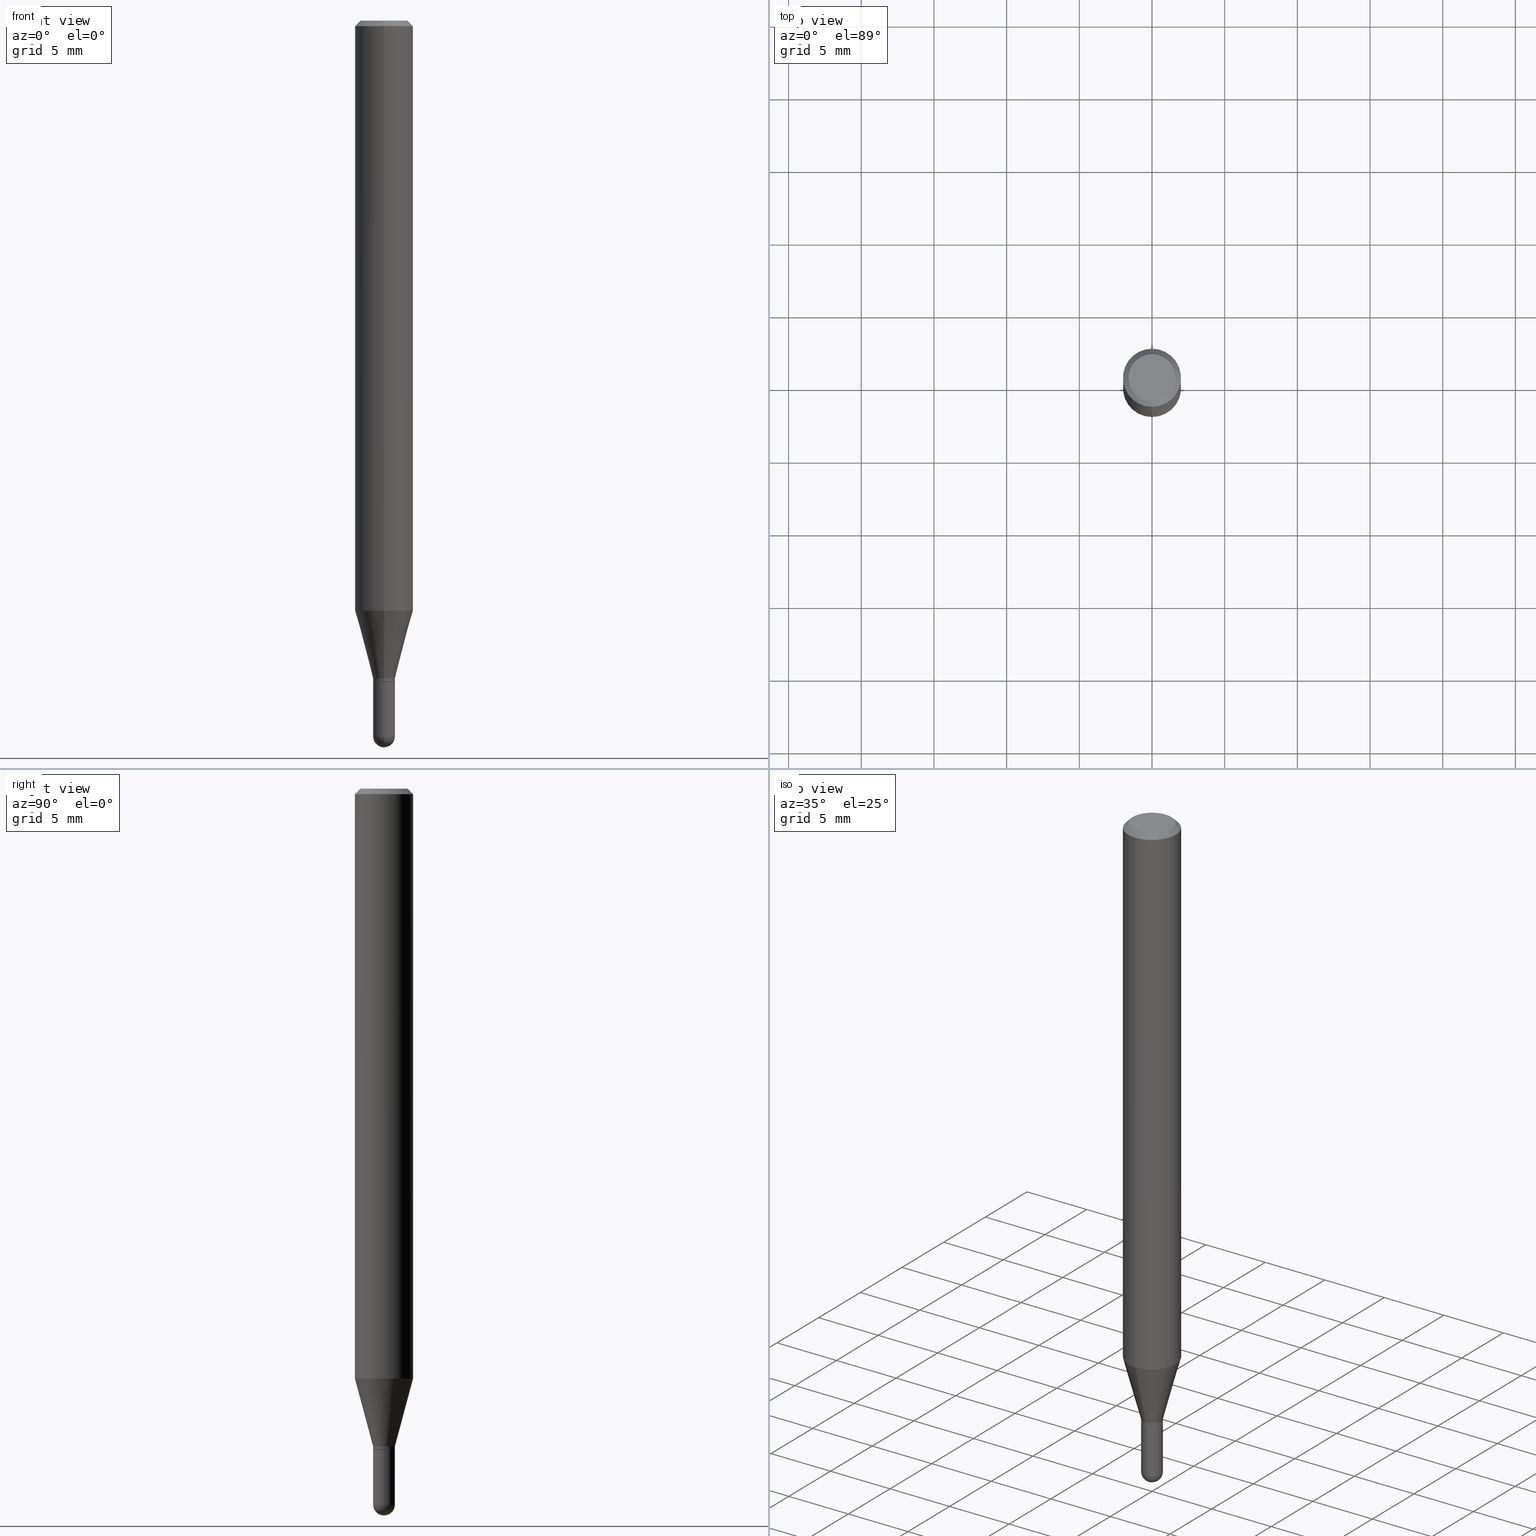
[diagram: canonical four-view strip — front | top / right | iso, engineering-drawing reading convention]
A machine part, canonical four-view strip (front | top / right | iso — engineering-drawing reading convention). The complete STEP part file that produces these views, byte-faithful:
ISO-10303-21;
HEADER;
FILE_DESCRIPTION (( 'STEP AP203' ),
    '1' );
FILE_NAME ('03008.STEP',
    '2024-03-08T18:00:10',
    ( '' ),
    ( '' ),
    'SwSTEP 2.0',
    'SolidWorks 2023',
    '' );
FILE_SCHEMA (( 'CONFIG_CONTROL_DESIGN' ));
ENDSEC;

DATA;
#1 = CARTESIAN_POINT ( 'NONE',  ( 2.064126647383528571E-16, 0.02904999999999374402, -1.791300000000000336 ) ) ;
#2 = CARTESIAN_POINT ( 'NONE',  ( 4.113903782286286095E-46, -5.873464679094396251E-32, -1.682241431823997072E-17 ) ) ;
#3 = APPROVAL_STATUS ( 'not_yet_approved' ) ;
#4 = APPROVAL_DATE_TIME ( #326, #141 ) ;
#5 = AXIS2_PLACEMENT_3D ( 'NONE', #491, #131, #295 ) ;
#6 = DIRECTION ( 'NONE',  ( -6.982962677686265133E-15, -1.000000000000000000, 0.000000000000000000 ) ) ;
#7 = AXIS2_PLACEMENT_3D ( 'NONE', #148, #51, #311 ) ;
#8 = PERSON_AND_ORGANIZATION_ROLE ( 'classification_officer' ) ;
#9 = EDGE_CURVE ( 'NONE', #355, #499, #20, .T. ) ;
#10 = CARTESIAN_POINT ( 'NONE',  ( 4.741641741752670047E-29, -6.769807741949916508E-15, -1.938949999999999729 ) ) ;
#11 = SECURITY_CLASSIFICATION_LEVEL ( 'unclassified' ) ;
#12 = EDGE_CURVE ( 'NONE', #30, #59, #300, .T. ) ;
#13 = CARTESIAN_POINT ( 'NONE',  ( 4.356639569979275081E-29, -6.220021174048346043E-15, -1.781500000000000083 ) ) ;
#14 = SPHERICAL_SURFACE ( 'NONE', #174, 0.02954999999999998253 ) ;
#15 = VECTOR ( 'NONE', #448, 39.37007874015748143 ) ;
#16 = CARTESIAN_POINT ( 'NONE',  ( 5.499083108677937401E-16, 0.07874999999999994504, -0.01500000000000029261 ) ) ;
#17 = VECTOR ( 'NONE', #477, 39.37007874015748143 ) ;
#18 = DIRECTION ( 'NONE',  ( 1.000000000000000000, -6.982962677686261977E-15, 0.000000000000000000 ) ) ;
#19 = EDGE_LOOP ( 'NONE', ( #495, #97 ) ) ;
#20 = LINE ( 'NONE', #90, #238 ) ;
#21 = FACE_OUTER_BOUND ( 'NONE', #254, .T. ) ;
#22 = CALENDAR_DATE ( 2024, 8, 3 ) ;
#23 = EDGE_CURVE ( 'NONE', #334, #30, #128, .T. ) ;
#24 = CARTESIAN_POINT ( 'NONE',  ( 3.668234271663721068E-31, -5.237177525159993378E-17, -0.01500000000000001679 ) ) ;
#25 = CARTESIAN_POINT ( 'NONE',  ( -0.02954999999999999988, 2.099653784171096041E-16, -1.453545319170324550E-30 ) ) ;
#26 = ORIENTED_EDGE ( 'NONE', *, *, #139, .F. ) ;
#27 = CYLINDRICAL_SURFACE ( 'NONE', #356, 0.02954999999999999988 ) ;
#28 = ORIENTED_EDGE ( 'NONE', *, *, #107, .F. ) ;
#29 = LINE ( 'NONE', #308, #481 ) ;
#30 = VERTEX_POINT ( 'NONE', #442 ) ;
#31 = CARTESIAN_POINT ( 'NONE',  ( 2.099653784171090371E-16, 0.02954999999999992355, -1.031723972456514811E-16 ) ) ;
#32 = EDGE_LOOP ( 'NONE', ( #266, #149, #294, #62 ) ) ;
#33 = ORIENTED_EDGE ( 'NONE', *, *, #440, .T. ) ;
#34 = PERSON_AND_ORGANIZATION ( #118, #357 ) ;
#35 = EDGE_CURVE ( 'NONE', #384, #263, #80, .T. ) ;
#36 = ORIENTED_EDGE ( 'NONE', *, *, #415, .F. ) ;
#37 =( LENGTH_UNIT ( ) NAMED_UNIT ( * ) SI_UNIT ( $, .METRE. ) );
#38 = CIRCLE ( 'NONE', #503, 0.02955000000000019764 ) ;
#39 = CARTESIAN_POINT ( 'NONE',  ( 4.356639569979275081E-29, -6.220021174048346043E-15, -1.781500000000000083 ) ) ;
#40 = DIRECTION ( 'NONE',  ( -2.445489514442478225E-29, 3.491451683439991329E-15, 1.000000000000000000 ) ) ;
#41 = CARTESIAN_POINT ( 'NONE',  ( -2.028550657867422299E-16, -0.02905000000000625138, -1.791300000000000336 ) ) ;
#42 = APPROVAL_DATE_TIME ( #45, #168 ) ;
#43 = DIRECTION ( 'NONE',  ( -2.445468806185136597E-29, 3.491481338843145583E-15, 1.000000000000000000 ) ) ;
#44 = ADVANCED_FACE ( 'NONE', ( #451 ), #452, .T. ) ;
#45 = DATE_AND_TIME ( #127, #55 ) ;
#46 = CARTESIAN_POINT ( 'NONE',  ( 4.380605367220811982E-29, -6.254237400546057519E-15, -1.791300000000000336 ) ) ;
#47 = CIRCLE ( 'NONE', #138, 0.02904999999999999943 ) ;
#48 = APPROVAL_STATUS ( 'not_yet_approved' ) ;
#49 = PLANE ( 'NONE',  #399 ) ;
#50 = EDGE_CURVE ( 'NONE', #416, #59, #373, .T. ) ;
#51 = DIRECTION ( 'NONE',  ( -2.445468806185136597E-29, 3.491481338843145583E-15, 1.000000000000000000 ) ) ;
#52 = DIRECTION ( 'NONE',  ( -6.982962677686264344E-15, -1.000000000000000000, 3.496114991891765576E-15 ) ) ;
#53 = ORIENTED_EDGE ( 'NONE', *, *, #512, .T. ) ;
#54 = APPLICATION_CONTEXT ( 'configuration controlled 3d designs of mechanical parts and assemblies' ) ;
#55 = LOCAL_TIME ( 13, 0, 10.00000000000000000, #246 ) ;
#56 = FACE_OUTER_BOUND ( 'NONE', #140, .T. ) ;
#57 = ORIENTED_EDGE ( 'NONE', *, *, #83, .F. ) ;
#58 = CARTESIAN_POINT ( 'NONE',  ( 0.000000000000000000, 0.000000000000000000, 0.000000000000000000 ) ) ;
#59 = VERTEX_POINT ( 'NONE', #417 ) ;
#60 = CARTESIAN_POINT ( 'NONE',  ( -5.499083108677930499E-16, -0.07875000000000004219, -0.01499999999999974097 ) ) ;
#61 = PRODUCT_DEFINITION ( 'UNKNOWN', '', #218, #353 ) ;
#62 = ORIENTED_EDGE ( 'NONE', *, *, #269, .T. ) ;
#63 = EDGE_CURVE ( 'NONE', #312, #105, #154, .T. ) ;
#64 = FACE_OUTER_BOUND ( 'NONE', #115, .T. ) ;
#65 = ORIENTED_EDGE ( 'NONE', *, *, #512, .F. ) ;
#66 = ADVANCED_FACE ( 'NONE', ( #21 ), #27, .T. ) ;
#67 = AXIS2_PLACEMENT_3D ( 'NONE', #242, #204, #403 ) ;
#68 = DIRECTION ( 'NONE',  ( 1.000000000000000000, 0.000000000000000000, 0.000000000000000000 ) ) ;
#69 = CIRCLE ( 'NONE', #365, 0.02954999999999998253 ) ;
#70 = ORIENTED_EDGE ( 'NONE', *, *, #147, .F. ) ;
#71 = ORIENTED_EDGE ( 'NONE', *, *, #160, .T. ) ;
#72 = CARTESIAN_POINT ( 'NONE',  ( -2.063465471255869873E-16, -0.02955000000000641489, -1.781500000000000083 ) ) ;
#73 = CARTESIAN_POINT ( 'NONE',  ( 4.379382622463590409E-29, -6.252491674704336958E-15, -1.790800000000000169 ) ) ;
#74 = DIRECTION ( 'NONE',  ( -6.982962677686264344E-15, -1.000000000000000000, 3.491451683439990934E-15 ) ) ;
#75 = VECTOR ( 'NONE', #207, 39.37007874015748143 ) ;
#76 = CIRCLE ( 'NONE', #492, 0.06374999999999998723 ) ;
#77 = DIRECTION ( 'NONE',  ( 1.000000000000000000, -6.982962677686261977E-15, 0.000000000000000000 ) ) ;
#78 = DIRECTION ( 'NONE',  ( -6.982962677686265133E-15, -1.000000000000000000, 0.000000000000000000 ) ) ;
#79 = CARTESIAN_POINT ( 'NONE',  ( -2.099653784170621245E-16, -0.02955000000000676530, -1.938949999999999729 ) ) ;
#80 = LINE ( 'NONE', #307, #317 ) ;
#81 = CALENDAR_DATE ( 2024, 8, 3 ) ;
#82 = CARTESIAN_POINT ( 'NONE',  ( 4.451638707024993845E-16, 0.06374999999999998723, -2.309912519784194220E-16 ) ) ;
#83 = EDGE_CURVE ( 'NONE', #312, #396, #184, .T. ) ;
#84 = PERSON_AND_ORGANIZATION ( #118, #357 ) ;
#85 = DIRECTION ( 'NONE',  ( -6.982962677686265922E-15, -1.000000000000000000, 3.491451683439991329E-15 ) ) ;
#86 = AXIS2_PLACEMENT_3D ( 'NONE', #283, #429, #68 ) ;
#87 = LOCAL_TIME ( 13, 0, 10.00000000000000000, #122 ) ;
#88 = CYLINDRICAL_SURFACE ( 'NONE', #302, 0.07875000000000000056 ) ;
#89 = FACE_OUTER_BOUND ( 'NONE', #455, .T. ) ;
#90 = CARTESIAN_POINT ( 'NONE',  ( 0.02954999999999999988, -2.063465471256291914E-16, 1.440910237247699070E-30 ) ) ;
#91 = DIRECTION ( 'NONE',  ( -2.445468806185136597E-29, 3.491481338843145583E-15, 1.000000000000000000 ) ) ;
#92 = ORIENTED_EDGE ( 'NONE', *, *, #349, .F. ) ;
#93 = AXIS2_PLACEMENT_3D ( 'NONE', #73, #397, #323 ) ;
#94 = DIRECTION ( 'NONE',  ( -2.445468806185136597E-29, 3.491481338843145583E-15, 1.000000000000000000 ) ) ;
#95 = CC_DESIGN_APPROVAL ( #141, ( #121 ) ) ;
#96 = DIRECTION ( 'NONE',  ( 1.000000000000000000, -6.982962677686261977E-15, 0.000000000000000000 ) ) ;
#97 = ORIENTED_EDGE ( 'NONE', *, *, #388, .F. ) ;
#98 = EDGE_CURVE ( 'NONE', #279, #105, #274, .T. ) ;
#99 = ORIENTED_EDGE ( 'NONE', *, *, #460, .T. ) ;
#100 = AXIS2_PLACEMENT_3D ( 'NONE', #244, #43, #213 ) ;
#101 = CC_DESIGN_PERSON_AND_ORGANIZATION_ASSIGNMENT ( #34, #117, ( #259 ) ) ;
#102 = AXIS2_PLACEMENT_3D ( 'NONE', #462, #333, #214 ) ;
#103 = CYLINDRICAL_SURFACE ( 'NONE', #165, 0.07875000000000000056 ) ;
#104 = ADVANCED_FACE ( 'NONE', ( #441 ), #137, .T. ) ;
#105 = VERTEX_POINT ( 'NONE', #79 ) ;
#106 = CARTESIAN_POINT ( 'NONE',  ( 4.812641836783178306E-29, -6.874790431158471975E-15, -1.968500000000000139 ) ) ;
#107 = EDGE_CURVE ( 'NONE', #309, #508, #331, .T. ) ;
#108 = ORIENTED_EDGE ( 'NONE', *, *, #9, .F. ) ;
#109 = DIRECTION ( 'NONE',  ( -2.445489514442478225E-29, 3.491451683439991329E-15, 1.000000000000000000 ) ) ;
#110 = ORIENTED_EDGE ( 'NONE', *, *, #232, .T. ) ;
#111 = ADVANCED_FACE ( 'NONE', ( #480 ), #116, .T. ) ;
#112 = MECHANICAL_CONTEXT ( 'NONE', #54, 'mechanical' ) ;
#113 = VERTEX_POINT ( 'NONE', #41 ) ;
#114 = DIRECTION ( 'NONE',  ( -6.982962677686265922E-15, -1.000000000000000000, 3.491451683439990934E-15 ) ) ;
#115 = EDGE_LOOP ( 'NONE', ( #183, #180, #194, #434 ) ) ;
#116 = SPHERICAL_SURFACE ( 'NONE', #412, 0.02954999999999998253 ) ;
#117 = PERSON_AND_ORGANIZATION_ROLE ( 'design_owner' ) ;
#118 = PERSON ( 'UNSPECIFIED', 'UNSPECIFIED', 'UNSPECIFIED', ('UNSPECIFIED'), ('UNSPECIFIED'), ('UNSPECIFIED') ) ;
#119 = FACE_OUTER_BOUND ( 'NONE', #423, .T. ) ;
#120 = DIRECTION ( 'NONE',  ( -6.982962677686266711E-15, -1.000000000000000000, 0.000000000000000000 ) ) ;
#121 = SECURITY_CLASSIFICATION ( '', '', #11 ) ;
#122 = COORDINATED_UNIVERSAL_TIME_OFFSET ( 5, 0, .BEHIND. ) ;
#123 = EDGE_CURVE ( 'NONE', #355, #469, #200, .T. ) ;
#124 = CARTESIAN_POINT ( 'NONE',  ( 0.000000000000000000, 0.000000000000000000, 0.000000000000000000 ) ) ;
#125 = APPROVAL_ROLE ( '' ) ;
#126 = DIRECTION ( 'NONE',  ( -2.445468806185136597E-29, 3.491481338843145583E-15, 1.000000000000000000 ) ) ;
#127 = CALENDAR_DATE ( 2024, 8, 3 ) ;
#128 = CIRCLE ( 'NONE', #291, 0.07875000000000000056 ) ;
#129 = CARTESIAN_POINT ( 'NONE',  ( 2.081890215777515068E-16, 0.02904999999999374402, -1.791300000000000336 ) ) ;
#130 = LOCAL_TIME ( 13, 0, 10.00000000000000000, #407 ) ;
#131 = DIRECTION ( 'NONE',  ( -1.000000000000000000, 7.105427357601001070E-15, -4.926315508542082329E-29 ) ) ;
#132 = CYLINDRICAL_SURFACE ( 'NONE', #7, 0.02954999999999999988 ) ;
#133 = LINE ( 'NONE', #187, #202 ) ;
#134 = EDGE_LOOP ( 'NONE', ( #475, #110 ) ) ;
#135 = EDGE_CURVE ( 'NONE', #227, #508, #38, .T. ) ;
#136 = ORIENTED_EDGE ( 'NONE', *, *, #388, .T. ) ;
#137 = CONICAL_SURFACE ( 'NONE', #216, 0.02955000000000019764, 0.2617993877991505736 ) ;
#138 = AXIS2_PLACEMENT_3D ( 'NONE', #395, #109, #120 ) ;
#139 = EDGE_CURVE ( 'NONE', #499, #396, #189, .T. ) ;
#140 = EDGE_LOOP ( 'NONE', ( #501, #472, #156, #305 ) ) ;
#141 = APPROVAL ( #366, 'UNSPECIFIED' ) ;
#142 = EDGE_CURVE ( 'NONE', #320, #461, #361, .T. ) ;
#143 = DIRECTION ( 'NONE',  ( -2.445489514442477945E-29, 3.491451683439991329E-15, 1.000000000000000000 ) ) ;
#144 = ORIENTED_EDGE ( 'NONE', *, *, #431, .F. ) ;
#145 = CIRCLE ( 'NONE', #67, 0.07875000000000000056 ) ;
#146 = AXIS2_PLACEMENT_3D ( 'NONE', #276, #40, #78 ) ;
#147 = EDGE_CURVE ( 'NONE', #309, #461, #324, .T. ) ;
#148 = CARTESIAN_POINT ( 'NONE',  ( 0.000000000000000000, 0.000000000000000000, 0.000000000000000000 ) ) ;
#149 = ORIENTED_EDGE ( 'NONE', *, *, #454, .F. ) ;
#150 = DIRECTION ( 'NONE',  ( -2.445489514442478225E-29, 3.491451683439991329E-15, 1.000000000000000000 ) ) ;
#151 = APPROVAL ( #3, 'UNSPECIFIED' ) ;
#152 = EDGE_LOOP ( 'NONE', ( #71, #229, #177, #92 ) ) ;
#153 = ORIENTED_EDGE ( 'NONE', *, *, #431, .T. ) ;
#154 = CIRCLE ( 'NONE', #230, 0.02954999999999999988 ) ;
#155 = CIRCLE ( 'NONE', #93, 0.02954999999999964946 ) ;
#156 = ORIENTED_EDGE ( 'NONE', *, *, #63, .F. ) ;
#157 = EDGE_CURVE ( 'NONE', #30, #334, #145, .T. ) ;
#158 = LINE ( 'NONE', #243, #17 ) ;
#159 = DIRECTION ( 'NONE',  ( 5.024295867785445738E-15, 0.7071067811861817543, 0.7071067811869132802 ) ) ;
#160 = EDGE_CURVE ( 'NONE', #508, #227, #426, .T. ) ;
#161 = DIRECTION ( 'NONE',  ( -2.445489514442478225E-29, 3.491451683439991329E-15, 1.000000000000000000 ) ) ;
#162 = APPROVAL_ROLE ( '' ) ;
#163 = EDGE_CURVE ( 'NONE', #105, #355, #497, .T. ) ;
#164 = SHAPE_DEFINITION_REPRESENTATION ( #457, #258 ) ;
#165 = AXIS2_PLACEMENT_3D ( 'NONE', #265, #502, #338 ) ;
#166 = DIRECTION ( 'NONE',  ( -2.445489514442478225E-29, 3.491451683439991329E-15, 1.000000000000000000 ) ) ;
#167 = DATE_TIME_ROLE ( 'creation_date' ) ;
#168 = APPROVAL ( #48, 'UNSPECIFIED' ) ;
#169 = DIRECTION ( 'NONE',  ( -6.982962677686266711E-15, -1.000000000000000000, 0.000000000000000000 ) ) ;
#170 = PERSON_AND_ORGANIZATION ( #118, #357 ) ;
#171 = CARTESIAN_POINT ( 'NONE',  ( -2.063465471256286244E-16, -0.02954999999999992355, 1.031723972456514811E-16 ) ) ;
#172 = AXIS2_PLACEMENT_3D ( 'NONE', #215, #459, #262 ) ;
#173 = DIRECTION ( 'NONE',  ( 6.982962677686265922E-15, 1.000000000000000000, 0.000000000000000000 ) ) ;
#174 = AXIS2_PLACEMENT_3D ( 'NONE', #376, #220, #173 ) ;
#175 = DIRECTION ( 'NONE',  ( -2.445468806185136597E-29, 3.491481338843145583E-15, 1.000000000000000000 ) ) ;
#176 = FACE_OUTER_BOUND ( 'NONE', #185, .T. ) ;
#177 = ORIENTED_EDGE ( 'NONE', *, *, #23, .F. ) ;
#178 = CARTESIAN_POINT ( 'NONE',  ( 5.595524044110787031E-16, 0.07875000000000000056, -2.749518200708992964E-16 ) ) ;
#179 = ADVANCED_FACE ( 'NONE', ( #478 ), #471, .T. ) ;
#180 = ORIENTED_EDGE ( 'NONE', *, *, #157, .T. ) ;
#181 = CIRCLE ( 'NONE', #223, 0.02954999999999999988 ) ;
#182 = DIRECTION ( 'NONE',  ( -2.445468806185136877E-29, 3.491481338843145188E-15, 1.000000000000000000 ) ) ;
#183 = ORIENTED_EDGE ( 'NONE', *, *, #12, .F. ) ;
#184 = LINE ( 'NONE', #25, #336 ) ;
#185 = EDGE_LOOP ( 'NONE', ( #394, #496, #343, #28 ) ) ;
#186 = ADVANCED_FACE ( 'NONE', ( #119 ), #485, .T. ) ;
#187 = CARTESIAN_POINT ( 'NONE',  ( -5.499083108677933457E-16, -0.07875000000000000056, 2.749518200708992964E-16 ) ) ;
#188 = ORIENTED_EDGE ( 'NONE', *, *, #235, .F. ) ;
#189 = CIRCLE ( 'NONE', #100, 0.02954999999999999988 ) ;
#190 = CC_DESIGN_PERSON_AND_ORGANIZATION_ASSIGNMENT ( #369, #329, ( #218 ) ) ;
#191 = CIRCLE ( 'NONE', #391, 0.07875000000000000056 ) ;
#192 = AXIS2_PLACEMENT_3D ( 'NONE', #449, #91, #18 ) ;
#193 = CARTESIAN_POINT ( 'NONE',  ( 2.099653784171501564E-16, 0.02954999999999330038, -1.790800000000000169 ) ) ;
#194 = ORIENTED_EDGE ( 'NONE', *, *, #251, .T. ) ;
#195 = DIRECTION ( 'NONE',  ( -2.445468806185136597E-29, 3.491481338843145583E-15, 1.000000000000000000 ) ) ;
#196 = ORIENTED_EDGE ( 'NONE', *, *, #123, .T. ) ;
#197 = DIRECTION ( 'NONE',  ( 1.839019923739602287E-15, 0.2588190451025252359, 0.9659258262890670910 ) ) ;
#198 = ORIENTED_EDGE ( 'NONE', *, *, #23, .T. ) ;
#199 = UNCERTAINTY_MEASURE_WITH_UNIT (LENGTH_MEASURE( 1.000000000000000082E-05 ), #315, 'distance_accuracy_value', 'NONE');
#200 = CIRCLE ( 'NONE', #301, 0.02954999999999999988 ) ;
#201 = DIRECTION ( 'NONE',  ( -6.982962677686266711E-15, -1.000000000000000000, 0.000000000000000000 ) ) ;
#202 = VECTOR ( 'NONE', #226, 39.37007874015748143 ) ;
#203 = DIRECTION ( 'NONE',  ( 6.982962677686265922E-15, 1.000000000000000000, 0.000000000000000000 ) ) ;
#204 = DIRECTION ( 'NONE',  ( -2.445489514442478225E-29, 3.491451683439991329E-15, 1.000000000000000000 ) ) ;
#205 = ADVANCED_FACE ( 'NONE', ( #287 ), #49, .F. ) ;
#206 = PERSON_AND_ORGANIZATION_ROLE ( 'design_supplier' ) ;
#207 = DIRECTION ( 'NONE',  ( -2.445489514442478505E-29, 3.491451683439991329E-15, 1.000000000000000000 ) ) ;
#208 = DATE_AND_TIME ( #325, #130 ) ;
#209 = AXIS2_PLACEMENT_3D ( 'NONE', #39, #363, #6 ) ;
#210 = AXIS2_PLACEMENT_3D ( 'NONE', #24, #424, #489 ) ;
#211 = CARTESIAN_POINT ( 'NONE',  ( 4.380605367220811982E-29, -6.254237400546057519E-15, -1.791300000000000336 ) ) ;
#212 = APPROVAL_DATE_TIME ( #208, #151 ) ;
#213 = DIRECTION ( 'NONE',  ( 1.000000000000000000, -6.982962677686261977E-15, 0.000000000000000000 ) ) ;
#214 = DIRECTION ( 'NONE',  ( -6.982962677686265922E-15, -1.000000000000000000, 3.491451683439991329E-15 ) ) ;
#215 = CARTESIAN_POINT ( 'NONE',  ( 3.668234271663721068E-31, -5.237177525159993378E-17, -0.01500000000000001679 ) ) ;
#216 = AXIS2_PLACEMENT_3D ( 'NONE', #13, #290, #487 ) ;
#217 = DIRECTION ( 'NONE',  ( -2.445489514442478225E-29, 3.491451683439991329E-15, 1.000000000000000000 ) ) ;
#218 = PRODUCT_DEFINITION_FORMATION_WITH_SPECIFIED_SOURCE ( 'ANY', '', #259, .NOT_KNOWN. ) ;
#219 = CC_DESIGN_SECURITY_CLASSIFICATION ( #121, ( #218 ) ) ;
#220 = DIRECTION ( 'NONE',  ( -1.000000000000000000, 6.982962677686265922E-15, -4.883557194083112901E-29 ) ) ;
#221 = EDGE_LOOP ( 'NONE', ( #505, #136, #53, #188 ) ) ;
#222 = ORIENTED_EDGE ( 'NONE', *, *, #35, .T. ) ;
#223 = AXIS2_PLACEMENT_3D ( 'NONE', #393, #195, #239 ) ;
#224 = APPROVAL_PERSON_ORGANIZATION ( #443, #141, #125 ) ;
#225 = ORIENTED_EDGE ( 'NONE', *, *, #157, .F. ) ;
#226 = DIRECTION ( 'NONE',  ( -2.445489514442478505E-29, 3.491451683439991329E-15, 1.000000000000000000 ) ) ;
#227 = VERTEX_POINT ( 'NONE', #476 ) ;
#228 = CARTESIAN_POINT ( 'NONE',  ( 4.380605367220811422E-29, -6.254237400546056730E-15, -1.791300000000000114 ) ) ;
#229 = ORIENTED_EDGE ( 'NONE', *, *, #415, .T. ) ;
#230 = AXIS2_PLACEMENT_3D ( 'NONE', #383, #175, #96 ) ;
#231 = AXIS2_PLACEMENT_3D ( 'NONE', #124, #282, #85 ) ;
#232 = EDGE_CURVE ( 'NONE', #384, #416, #76, .T. ) ;
#233 = DIRECTION ( 'NONE',  ( -6.982962677686264344E-15, -1.000000000000000000, 3.469013325287953293E-15 ) ) ;
#234 = ORIENTED_EDGE ( 'NONE', *, *, #123, .F. ) ;
#235 = EDGE_CURVE ( 'NONE', #461, #309, #155, .T. ) ;
#236 = ORIENTED_EDGE ( 'NONE', *, *, #50, .F. ) ;
#237 = CARTESIAN_POINT ( 'NONE',  ( 4.379382622463590409E-29, -6.252491674704336958E-15, -1.790800000000000169 ) ) ;
#238 = VECTOR ( 'NONE', #490, 39.37007874015748143 ) ;
#239 = DIRECTION ( 'NONE',  ( 1.000000000000000000, -6.982962677686261977E-15, 0.000000000000000000 ) ) ;
#240 = CONICAL_SURFACE ( 'NONE', #146, 0.02955000000000019764, 0.2617993877991505736 ) ;
#241 = ADVANCED_FACE ( 'NONE', ( #405 ), #375, .T. ) ;
#242 = CARTESIAN_POINT ( 'NONE',  ( 3.907606367009286482E-29, -5.578931640369670295E-15, -1.597883100267613043 ) ) ;
#243 = CARTESIAN_POINT ( 'NONE',  ( -2.028550657867422299E-16, -0.02905000000000625138, -1.791300000000000336 ) ) ;
#244 = CARTESIAN_POINT ( 'NONE',  ( 4.380568272519435501E-29, -6.254290522269726388E-15, -1.791300000000000114 ) ) ;
#245 = CC_DESIGN_PERSON_AND_ORGANIZATION_ASSIGNMENT ( #404, #206, ( #218 ) ) ;
#246 = COORDINATED_UNIVERSAL_TIME_OFFSET ( 5, 0, .BEHIND. ) ;
#247 = DIRECTION ( 'NONE',  ( -6.982962677686265922E-15, -1.000000000000000000, 3.491451683439990934E-15 ) ) ;
#248 = COORDINATED_UNIVERSAL_TIME_OFFSET ( 5, 0, .BEHIND. ) ;
#249 = AXIS2_PLACEMENT_3D ( 'NONE', #46, #166, #444 ) ;
#250 = DIRECTION ( 'NONE',  ( -2.445489514442478225E-29, 3.491451683439991329E-15, 1.000000000000000000 ) ) ;
#251 = EDGE_CURVE ( 'NONE', #334, #263, #133, .T. ) ;
#252 = DIRECTION ( 'NONE',  ( -1.807323732225332111E-15, -0.2588190451025184635, 0.9659258262890689783 ) ) ;
#253 = CARTESIAN_POINT ( 'NONE',  ( 3.668234271663721068E-31, -5.237177525159993378E-17, -0.01500000000000001679 ) ) ;
#254 = EDGE_LOOP ( 'NONE', ( #57, #430, #297, #387, #144 ) ) ;
#255 = AXIS2_PLACEMENT_3D ( 'NONE', #278, #439, #114 ) ;
#256 = DIRECTION ( 'NONE',  ( 2.438088387897960049E-29, -3.491481338843145188E-15, -1.000000000000000000 ) ) ;
#257 = ADVANCED_FACE ( 'NONE', ( #176 ), #344, .T. ) ;
#258 = ADVANCED_BREP_SHAPE_REPRESENTATION ( '03008', ( #432, #421, #86 ), #318 ) ;
#259 = PRODUCT ( '03008', '03008', '', ( #112 ) ) ;
#260 = EDGE_LOOP ( 'NONE', ( #36, #427, #347, #225 ) ) ;
#261 = CC_DESIGN_PERSON_AND_ORGANIZATION_ASSIGNMENT ( #84, #332, ( #61 ) ) ;
#262 = DIRECTION ( 'NONE',  ( 6.982962677686264344E-15, 1.000000000000000000, -3.496114991891765576E-15 ) ) ;
#263 = VERTEX_POINT ( 'NONE', #60 ) ;
#264 = CIRCLE ( 'NONE', #406, 0.07875000000000000056 ) ;
#265 = CARTESIAN_POINT ( 'NONE',  ( 0.000000000000000000, 0.000000000000000000, 0.000000000000000000 ) ) ;
#266 = ORIENTED_EDGE ( 'NONE', *, *, #35, .F. ) ;
#267 = CARTESIAN_POINT ( 'NONE',  ( -0.02954999999999999988, -6.302083753692712485E-15, -1.938949999999999729 ) ) ;
#268 = ORIENTED_EDGE ( 'NONE', *, *, #327, .T. ) ;
#269 = EDGE_CURVE ( 'NONE', #59, #263, #264, .T. ) ;
#270 = CARTESIAN_POINT ( 'NONE',  ( 2.063465471256765230E-16, 0.02954999999999321711, -1.938949999999999729 ) ) ;
#271 = DIMENSIONAL_EXPONENTS ( 1.000000000000000000, 0.000000000000000000, 0.000000000000000000, 0.000000000000000000, 0.000000000000000000, 0.000000000000000000, 0.000000000000000000 ) ;
#272 = EDGE_LOOP ( 'NONE', ( #198, #420, #345, #425 ) ) ;
#273 = ADVANCED_FACE ( 'NONE', ( #450 ), #511, .T. ) ;
#274 = CIRCLE ( 'NONE', #5, 0.02954999999999998253 ) ;
#275 = AXIS2_PLACEMENT_3D ( 'NONE', #409, #256, #414 ) ;
#276 = CARTESIAN_POINT ( 'NONE',  ( 4.356639569979275081E-29, -6.220021174048346043E-15, -1.781500000000000083 ) ) ;
#277 = ORIENTED_EDGE ( 'NONE', *, *, #135, .F. ) ;
#278 = CARTESIAN_POINT ( 'NONE',  ( 4.113903782286286095E-46, -5.873464679094396251E-32, -1.682241431823997072E-17 ) ) ;
#279 = VERTEX_POINT ( 'NONE', #106 ) ;
#280 = DIRECTION ( 'NONE',  ( -2.445489514442478225E-29, 3.491451683439991329E-15, 1.000000000000000000 ) ) ;
#281 = APPLICATION_PROTOCOL_DEFINITION ( 'international standard', 'config_control_design', 1994, #289 ) ;
#282 = DIRECTION ( 'NONE',  ( -2.445489514442478225E-29, 3.491451683439991329E-15, 1.000000000000000000 ) ) ;
#283 = CARTESIAN_POINT ( 'NONE',  ( 0.000000000000000000, 0.000000000000000000, 0.000000000000000000 ) ) ;
#284 = APPROVAL_PERSON_ORGANIZATION ( #288, #168, #483 ) ;
#285 = DIRECTION ( 'NONE',  ( -1.000000000000000000, 6.982962677686265922E-15, -4.883557194083112901E-29 ) ) ;
#286 = DATE_TIME_ROLE ( 'classification_date' ) ;
#287 = FACE_OUTER_BOUND ( 'NONE', #134, .T. ) ;
#288 = PERSON_AND_ORGANIZATION ( #118, #357 ) ;
#289 = APPLICATION_CONTEXT ( 'configuration controlled 3d designs of mechanical parts and assemblies' ) ;
#290 = DIRECTION ( 'NONE',  ( -2.445489514442478225E-29, 3.491451683439991329E-15, 1.000000000000000000 ) ) ;
#291 = AXIS2_PLACEMENT_3D ( 'NONE', #386, #313, #233 ) ;
#292 = CIRCLE ( 'NONE', #255, 0.06374999999999998723 ) ;
#293 = FACE_OUTER_BOUND ( 'NONE', #272, .T. ) ;
#294 = ORIENTED_EDGE ( 'NONE', *, *, #50, .T. ) ;
#295 = DIRECTION ( 'NONE',  ( -7.105427357601001070E-15, -1.000000000000000000, 0.000000000000000000 ) ) ;
#296 = DIRECTION ( 'NONE',  ( -2.445489514442478225E-29, 3.491451683439991329E-15, 1.000000000000000000 ) ) ;
#297 = ORIENTED_EDGE ( 'NONE', *, *, #163, .T. ) ;
#298 = EDGE_CURVE ( 'NONE', #469, #312, #337, .T. ) ;
#299 = CARTESIAN_POINT ( 'NONE',  ( 3.668234271663721068E-31, -5.237177525159993378E-17, -0.01500000000000001679 ) ) ;
#300 = LINE ( 'NONE', #178, #15 ) ;
#301 = AXIS2_PLACEMENT_3D ( 'NONE', #321, #126, #77 ) ;
#302 = AXIS2_PLACEMENT_3D ( 'NONE', #493, #296, #74 ) ;
#303 = EDGE_LOOP ( 'NONE', ( #33, #510, #70, #65 ) ) ;
#304 = DIRECTION ( 'NONE',  ( -4.851104656540965064E-15, -0.7071067811865501263, -0.7071067811865449082 ) ) ;
#305 = ORIENTED_EDGE ( 'NONE', *, *, #298, .F. ) ;
#306 = ORIENTED_EDGE ( 'NONE', *, *, #298, .T. ) ;
#307 = CARTESIAN_POINT ( 'NONE',  ( -5.402642173245076924E-16, -0.07875000000000004219, -0.01499999999999974097 ) ) ;
#308 = CARTESIAN_POINT ( 'NONE',  ( -2.063465471255869873E-16, -0.02955000000000641489, -1.781500000000000083 ) ) ;
#309 = VERTEX_POINT ( 'NONE', #494 ) ;
#310 = APPROVAL_PERSON_ORGANIZATION ( #436, #151, #162 ) ;
#311 = DIRECTION ( 'NONE',  ( 1.000000000000000000, -6.982962677686266711E-15, 4.876176775795935793E-29 ) ) ;
#312 = VERTEX_POINT ( 'NONE', #267 ) ;
#313 = DIRECTION ( 'NONE',  ( -2.445489514442478225E-29, 3.491451683439991329E-15, 1.000000000000000000 ) ) ;
#314 = EDGE_LOOP ( 'NONE', ( #350, #222, #268, #236 ) ) ;
#315 =( CONVERSION_BASED_UNIT ( 'INCH', #507 ) LENGTH_UNIT ( ) NAMED_UNIT ( #271 ) );
#316 = ORIENTED_EDGE ( 'NONE', *, *, #107, .T. ) ;
#317 = VECTOR ( 'NONE', #304, 39.37007874015748143 ) ;
#318 =( GEOMETRIC_REPRESENTATION_CONTEXT ( 3 ) GLOBAL_UNCERTAINTY_ASSIGNED_CONTEXT ( ( #199 ) ) GLOBAL_UNIT_ASSIGNED_CONTEXT ( ( #315, #360, #351 ) ) REPRESENTATION_CONTEXT ( 'NONE', 'WORKASPACE' ) );
#319 = CARTESIAN_POINT ( 'NONE',  ( 4.380605367220811982E-29, -6.254237400546057519E-15, -1.791300000000000336 ) ) ;
#320 = VERTEX_POINT ( 'NONE', #129 ) ;
#321 = CARTESIAN_POINT ( 'NONE',  ( 4.741641741752670047E-29, -6.769807741949916508E-15, -1.938949999999999729 ) ) ;
#322 = APPLICATION_PROTOCOL_DEFINITION ( 'international standard', 'config_control_design', 1994, #54 ) ;
#323 = DIRECTION ( 'NONE',  ( -6.982962677686265922E-15, -1.000000000000000000, 0.000000000000000000 ) ) ;
#324 = CIRCLE ( 'NONE', #398, 0.02954999999999964946 ) ;
#325 = CALENDAR_DATE ( 2024, 8, 3 ) ;
#326 = DATE_AND_TIME ( #22, #465 ) ;
#327 = EDGE_CURVE ( 'NONE', #263, #59, #191, .T. ) ;
#328 = CARTESIAN_POINT ( 'NONE',  ( 4.739114725368145232E-29, -6.773426573241397832E-15, -1.938950000000000173 ) ) ;
#329 = PERSON_AND_ORGANIZATION_ROLE ( 'creator' ) ;
#330 = ADVANCED_FACE ( 'NONE', ( #385 ), #500, .F. ) ;
#331 = LINE ( 'NONE', #171, #75 ) ;
#332 = PERSON_AND_ORGANIZATION_ROLE ( 'creator' ) ;
#333 = DIRECTION ( 'NONE',  ( -2.445489514442478225E-29, 3.491451683439991329E-15, 1.000000000000000000 ) ) ;
#334 = VERTEX_POINT ( 'NONE', #372 ) ;
#335 = ADVANCED_FACE ( 'NONE', ( #56 ), #14, .T. ) ;
#336 = VECTOR ( 'NONE', #182, 39.37007874015748143 ) ;
#337 = CIRCLE ( 'NONE', #192, 0.02954999999999999988 ) ;
#338 = DIRECTION ( 'NONE',  ( -6.982962677686264344E-15, -1.000000000000000000, 3.491451683439990934E-15 ) ) ;
#339 = ADVANCED_FACE ( 'NONE', ( #378 ), #389, .F. ) ;
#340 = DIRECTION ( 'NONE',  ( -6.982962677686264344E-15, -1.000000000000000000, 3.496114991891765576E-15 ) ) ;
#341 = ORIENTED_EDGE ( 'NONE', *, *, #98, .F. ) ;
#342 = AXIS2_PLACEMENT_3D ( 'NONE', #10, #401, #408 ) ;
#343 = ORIENTED_EDGE ( 'NONE', *, *, #160, .F. ) ;
#344 = CYLINDRICAL_SURFACE ( 'NONE', #102, 0.02954999999999992355 ) ;
#345 = ORIENTED_EDGE ( 'NONE', *, *, #327, .F. ) ;
#346 = CARTESIAN_POINT ( 'NONE',  ( 0.02954999999999999988, -6.718395679235450664E-15, -1.938949999999999729 ) ) ;
#347 = ORIENTED_EDGE ( 'NONE', *, *, #349, .T. ) ;
#348 = CC_DESIGN_APPROVAL ( #168, ( #218 ) ) ;
#349 = EDGE_CURVE ( 'NONE', #508, #334, #29, .T. ) ;
#350 = ORIENTED_EDGE ( 'NONE', *, *, #232, .F. ) ;
#351 =( NAMED_UNIT ( * ) SI_UNIT ( $, .STERADIAN. ) SOLID_ANGLE_UNIT ( ) );
#352 = ORIENTED_EDGE ( 'NONE', *, *, #139, .T. ) ;
#353 = DESIGN_CONTEXT ( 'detailed design', #289, 'design' ) ;
#354 = CARTESIAN_POINT ( 'NONE',  ( 4.975360907851465623E-16, 0.06374999999999998723, -2.394024591375393642E-16 ) ) ;
#355 = VERTEX_POINT ( 'NONE', #346 ) ;
#356 = AXIS2_PLACEMENT_3D ( 'NONE', #58, #94, #380 ) ;
#357 = ORGANIZATION ( 'UNSPECIFIED', 'UNSPECIFIED', '' ) ;
#358 = LINE ( 'NONE', #470, #453 ) ;
#359 = DIRECTION ( 'NONE',  ( -6.982962677686265133E-15, -1.000000000000000000, 0.000000000000000000 ) ) ;
#360 =( NAMED_UNIT ( * ) PLANE_ANGLE_UNIT ( ) SI_UNIT ( $, .RADIAN. ) );
#361 = LINE ( 'NONE', #1, #374 ) ;
#362 = CALENDAR_DATE ( 2024, 8, 3 ) ;
#363 = DIRECTION ( 'NONE',  ( -2.445489514442478225E-29, 3.491451683439991329E-15, 1.000000000000000000 ) ) ;
#364 = CLOSED_SHELL ( 'NONE', ( #379, #335, #330, #111, #66 ) ) ;
#365 = AXIS2_PLACEMENT_3D ( 'NONE', #509, #402, #400 ) ;
#366 = APPROVAL_STATUS ( 'not_yet_approved' ) ;
#367 = ADVANCED_FACE ( 'NONE', ( #293 ), #103, .T. ) ;
#368 = DIRECTION ( 'NONE',  ( -2.445489514442478225E-29, 3.491451683439991329E-15, 1.000000000000000000 ) ) ;
#369 = PERSON_AND_ORGANIZATION ( #118, #357 ) ;
#370 = EDGE_CURVE ( 'NONE', #461, #227, #447, .T. ) ;
#371 = DIRECTION ( 'NONE',  ( 6.982962677686265922E-15, 1.000000000000000000, -3.491451683439991329E-15 ) ) ;
#372 = CARTESIAN_POINT ( 'NONE',  ( -5.499083108677545929E-16, -0.07875000000000559330, -1.597883100267612599 ) ) ;
#373 = LINE ( 'NONE', #16, #418 ) ;
#374 = VECTOR ( 'NONE', #159, 39.37007874015748143 ) ;
#375 = CONICAL_SURFACE ( 'NONE', #428, 0.02904999999999999943, 0.7853981633969275844 ) ;
#376 = CARTESIAN_POINT ( 'NONE',  ( 4.739114725368145232E-29, -6.773426573241397832E-15, -1.938950000000000173 ) ) ;
#377 = EDGE_LOOP ( 'NONE', ( #341, #99, #234, #467 ) ) ;
#378 = FACE_OUTER_BOUND ( 'NONE', #19, .T. ) ;
#379 = ADVANCED_FACE ( 'NONE', ( #89 ), #132, .T. ) ;
#380 = DIRECTION ( 'NONE',  ( 1.000000000000000000, -6.982962677686266711E-15, 4.876176775795935793E-29 ) ) ;
#381 = ADVANCED_FACE ( 'NONE', ( #64 ), #88, .T. ) ;
#382 = EDGE_LOOP ( 'NONE', ( #352, #153 ) ) ;
#383 = CARTESIAN_POINT ( 'NONE',  ( 4.741641741752670047E-29, -6.769807741949916508E-15, -1.938949999999999729 ) ) ;
#384 = VERTEX_POINT ( 'NONE', #468 ) ;
#385 = FACE_OUTER_BOUND ( 'NONE', #382, .T. ) ;
#386 = CARTESIAN_POINT ( 'NONE',  ( 3.907606367009286482E-29, -5.578931640369670295E-15, -1.597883100267613043 ) ) ;
#387 = ORIENTED_EDGE ( 'NONE', *, *, #9, .T. ) ;
#388 = EDGE_CURVE ( 'NONE', #320, #113, #504, .T. ) ;
#389 = PLANE ( 'NONE',  #498 ) ;
#390 = ORIENTED_EDGE ( 'NONE', *, *, #83, .T. ) ;
#391 = AXIS2_PLACEMENT_3D ( 'NONE', #253, #217, #52 ) ;
#392 = PRODUCT_RELATED_PRODUCT_CATEGORY ( 'detail', '', ( #259 ) ) ;
#393 = CARTESIAN_POINT ( 'NONE',  ( 4.380568272519435501E-29, -6.254290522269726388E-15, -1.791300000000000114 ) ) ;
#394 = ORIENTED_EDGE ( 'NONE', *, *, #147, .T. ) ;
#395 = CARTESIAN_POINT ( 'NONE',  ( 4.380605367220811982E-29, -6.254237400546057519E-15, -1.791300000000000336 ) ) ;
#396 = VERTEX_POINT ( 'NONE', #474 ) ;
#397 = DIRECTION ( 'NONE',  ( -2.445489514442478225E-29, 3.491451683439991329E-15, 1.000000000000000000 ) ) ;
#398 = AXIS2_PLACEMENT_3D ( 'NONE', #237, #250, #446 ) ;
#399 = AXIS2_PLACEMENT_3D ( 'NONE', #82, #437, #371 ) ;
#400 = DIRECTION ( 'NONE',  ( 6.982962677686265922E-15, 1.000000000000000000, 0.000000000000000000 ) ) ;
#401 = DIRECTION ( 'NONE',  ( -2.445468806185136597E-29, 3.491481338843145583E-15, 1.000000000000000000 ) ) ;
#402 = DIRECTION ( 'NONE',  ( 1.000000000000000000, -6.982962677686265922E-15, 4.883557194083112340E-29 ) ) ;
#403 = DIRECTION ( 'NONE',  ( -6.982962677686264344E-15, -1.000000000000000000, 3.469013325287953293E-15 ) ) ;
#404 = PERSON_AND_ORGANIZATION ( #118, #357 ) ;
#405 = FACE_OUTER_BOUND ( 'NONE', #221, .T. ) ;
#406 = AXIS2_PLACEMENT_3D ( 'NONE', #299, #466, #340 ) ;
#407 = COORDINATED_UNIVERSAL_TIME_OFFSET ( 5, 0, .BEHIND. ) ;
#408 = DIRECTION ( 'NONE',  ( 1.000000000000000000, -6.982962677686261977E-15, 0.000000000000000000 ) ) ;
#409 = CARTESIAN_POINT ( 'NONE',  ( 2.063465471256729731E-16, 0.02954999999999374793, -1.791300000000000114 ) ) ;
#410 = CC_DESIGN_DATE_AND_TIME_ASSIGNMENT ( #486, #286, ( #121 ) ) ;
#411 = DIRECTION ( 'NONE',  ( -6.982962677686265922E-15, -1.000000000000000000, 3.491451683439991329E-15 ) ) ;
#412 = AXIS2_PLACEMENT_3D ( 'NONE', #328, #285, #203 ) ;
#413 = CLOSED_SHELL ( 'NONE', ( #257, #179, #44, #367, #473, #104, #381, #273, #205, #339, #241, #186 ) ) ;
#414 = DIRECTION ( 'NONE',  ( -1.000000000000000000, 6.982962677686265922E-15, -4.876176775795935793E-29 ) ) ;
#415 = EDGE_CURVE ( 'NONE', #227, #30, #358, .T. ) ;
#416 = VERTEX_POINT ( 'NONE', #354 ) ;
#417 = CARTESIAN_POINT ( 'NONE',  ( 5.595524044111180475E-16, 0.07874999999999994504, -0.01500000000000029261 ) ) ;
#418 = VECTOR ( 'NONE', #456, 39.37007874015748143 ) ;
#419 = CC_DESIGN_APPROVAL ( #151, ( #61 ) ) ;
#420 = ORIENTED_EDGE ( 'NONE', *, *, #12, .T. ) ;
#421 = MANIFOLD_SOLID_BREP ( 'Body-Move/Copy2[2]', #413 ) ;
#422 = DIRECTION ( 'NONE',  ( -2.445489514442478505E-29, 3.491451683439991329E-15, 1.000000000000000000 ) ) ;
#423 = EDGE_LOOP ( 'NONE', ( #464, #506, #316, #277 ) ) ;
#424 = DIRECTION ( 'NONE',  ( 2.445489514442478225E-29, -3.491451683439991329E-15, -1.000000000000000000 ) ) ;
#425 = ORIENTED_EDGE ( 'NONE', *, *, #251, .F. ) ;
#426 = CIRCLE ( 'NONE', #209, 0.02955000000000019764 ) ;
#427 = ORIENTED_EDGE ( 'NONE', *, *, #135, .T. ) ;
#428 = AXIS2_PLACEMENT_3D ( 'NONE', #211, #368, #169 ) ;
#429 = DIRECTION ( 'NONE',  ( 0.000000000000000000, 0.000000000000000000, 1.000000000000000000 ) ) ;
#430 = ORIENTED_EDGE ( 'NONE', *, *, #63, .T. ) ;
#431 = EDGE_CURVE ( 'NONE', #396, #499, #181, .T. ) ;
#432 = MANIFOLD_SOLID_BREP ( 'Body-Move/Copy2[1]', #364 ) ;
#433 = CARTESIAN_POINT ( 'NONE',  ( 0.02954999999999999988, -6.460637069395355998E-15, -1.791300000000000114 ) ) ;
#434 = ORIENTED_EDGE ( 'NONE', *, *, #269, .F. ) ;
#435 = CARTESIAN_POINT ( 'NONE',  ( 4.356639569979275081E-29, -6.220021174048346043E-15, -1.781500000000000083 ) ) ;
#436 = PERSON_AND_ORGANIZATION ( #118, #357 ) ;
#437 = DIRECTION ( 'NONE',  ( 2.445489514442477945E-29, -3.491451683439991329E-15, -1.000000000000000000 ) ) ;
#438 = LOCAL_TIME ( 13, 0, 10.00000000000000000, #248 ) ;
#439 = DIRECTION ( 'NONE',  ( -2.445489514442478225E-29, 3.491451683439991329E-15, 1.000000000000000000 ) ) ;
#440 = EDGE_CURVE ( 'NONE', #113, #320, #47, .T. ) ;
#441 = FACE_OUTER_BOUND ( 'NONE', #260, .T. ) ;
#442 = CARTESIAN_POINT ( 'NONE',  ( 5.595524044111175545E-16, 0.07874999999999438005, -1.597883100267613266 ) ) ;
#443 = PERSON_AND_ORGANIZATION ( #118, #357 ) ;
#444 = DIRECTION ( 'NONE',  ( -6.982962677686266711E-15, -1.000000000000000000, 0.000000000000000000 ) ) ;
#445 = COORDINATED_UNIVERSAL_TIME_OFFSET ( 5, 0, .BEHIND. ) ;
#446 = DIRECTION ( 'NONE',  ( -6.982962677686265922E-15, -1.000000000000000000, 0.000000000000000000 ) ) ;
#447 = LINE ( 'NONE', #31, #463 ) ;
#448 = DIRECTION ( 'NONE',  ( -2.445489514442478505E-29, 3.491451683439991329E-15, 1.000000000000000000 ) ) ;
#449 = CARTESIAN_POINT ( 'NONE',  ( 4.741641741752670047E-29, -6.769807741949916508E-15, -1.938949999999999729 ) ) ;
#450 = FACE_OUTER_BOUND ( 'NONE', #32, .T. ) ;
#451 = FACE_OUTER_BOUND ( 'NONE', #314, .T. ) ;
#452 = CONICAL_SURFACE ( 'NONE', #172, 0.07875000000000000056, 0.7853981633974485010 ) ;
#453 = VECTOR ( 'NONE', #197, 39.37007874015748143 ) ;
#454 = EDGE_CURVE ( 'NONE', #416, #384, #292, .T. ) ;
#455 = EDGE_LOOP ( 'NONE', ( #306, #390, #26, #108, #196 ) ) ;
#456 = DIRECTION ( 'NONE',  ( 4.937700262164548831E-15, 0.7071067811865452413, -0.7071067811865497932 ) ) ;
#457 = PRODUCT_DEFINITION_SHAPE ( 'NONE', 'NONE',  #61 ) ;
#458 = CC_DESIGN_DATE_AND_TIME_ASSIGNMENT ( #488, #167, ( #61 ) ) ;
#459 = DIRECTION ( 'NONE',  ( 2.445489514442478225E-29, -3.491451683439991329E-15, -1.000000000000000000 ) ) ;
#460 = EDGE_CURVE ( 'NONE', #279, #469, #69, .T. ) ;
#461 = VERTEX_POINT ( 'NONE', #193 ) ;
#462 = CARTESIAN_POINT ( 'NONE',  ( 0.000000000000000000, 0.000000000000000000, 0.000000000000000000 ) ) ;
#463 = VECTOR ( 'NONE', #422, 39.37007874015748143 ) ;
#464 = ORIENTED_EDGE ( 'NONE', *, *, #370, .F. ) ;
#465 = LOCAL_TIME ( 13, 0, 10.00000000000000000, #445 ) ;
#466 = DIRECTION ( 'NONE',  ( -2.445489514442478225E-29, 3.491451683439991329E-15, 1.000000000000000000 ) ) ;
#467 = ORIENTED_EDGE ( 'NONE', *, *, #163, .F. ) ;
#468 = CARTESIAN_POINT ( 'NONE',  ( -4.888104823412212925E-16, -0.06374999999999998723, 2.057576305010594228E-16 ) ) ;
#469 = VERTEX_POINT ( 'NONE', #270 ) ;
#470 = CARTESIAN_POINT ( 'NONE',  ( 2.099653784171545198E-16, 0.02954999999999397692, -1.781500000000000083 ) ) ;
#471 = CONICAL_SURFACE ( 'NONE', #249, 0.02904999999999999943, 0.7853981633969275844 ) ;
#472 = ORIENTED_EDGE ( 'NONE', *, *, #98, .T. ) ;
#473 = ADVANCED_FACE ( 'NONE', ( #479 ), #240, .T. ) ;
#474 = CARTESIAN_POINT ( 'NONE',  ( -0.02954999999999999988, -6.302083753692712485E-15, -1.791300000000000114 ) ) ;
#475 = ORIENTED_EDGE ( 'NONE', *, *, #454, .T. ) ;
#476 = CARTESIAN_POINT ( 'NONE',  ( 3.847588914141361851E-16, 0.02954999999999397692, -1.781500000000000083 ) ) ;
#477 = DIRECTION ( 'NONE',  ( -4.937700262161976356E-15, -0.7071067811861768693, 0.7071067811869181652 ) ) ;
#478 = FACE_OUTER_BOUND ( 'NONE', #303, .T. ) ;
#479 = FACE_OUTER_BOUND ( 'NONE', #152, .T. ) ;
#480 = FACE_OUTER_BOUND ( 'NONE', #377, .T. ) ;
#481 = VECTOR ( 'NONE', #252, 39.37007874015748854 ) ;
#482 = AXIS2_PLACEMENT_3D ( 'NONE', #319, #150, #201 ) ;
#483 = APPROVAL_ROLE ( '' ) ;
#484 = CC_DESIGN_PERSON_AND_ORGANIZATION_ASSIGNMENT ( #170, #8, ( #121 ) ) ;
#485 = CYLINDRICAL_SURFACE ( 'NONE', #231, 0.02954999999999992355 ) ;
#486 = DATE_AND_TIME ( #362, #87 ) ;
#487 = DIRECTION ( 'NONE',  ( -6.982962677686265133E-15, -1.000000000000000000, 0.000000000000000000 ) ) ;
#488 = DATE_AND_TIME ( #81, #438 ) ;
#489 = DIRECTION ( 'NONE',  ( 6.982962677686264344E-15, 1.000000000000000000, -3.496114991891765576E-15 ) ) ;
#490 = DIRECTION ( 'NONE',  ( -2.445468806185136877E-29, 3.491481338843145188E-15, 1.000000000000000000 ) ) ;
#491 = CARTESIAN_POINT ( 'NONE',  ( 4.739114725368145232E-29, -6.773426573241397832E-15, -1.938950000000000173 ) ) ;
#492 = AXIS2_PLACEMENT_3D ( 'NONE', #2, #161, #247 ) ;
#493 = CARTESIAN_POINT ( 'NONE',  ( 0.000000000000000000, 0.000000000000000000, 0.000000000000000000 ) ) ;
#494 = CARTESIAN_POINT ( 'NONE',  ( -2.063465471255836346E-16, -0.02955000000000600202, -1.790800000000000169 ) ) ;
#495 = ORIENTED_EDGE ( 'NONE', *, *, #440, .F. ) ;
#496 = ORIENTED_EDGE ( 'NONE', *, *, #370, .T. ) ;
#497 = CIRCLE ( 'NONE', #342, 0.02954999999999999988 ) ;
#498 = AXIS2_PLACEMENT_3D ( 'NONE', #228, #143, #411 ) ;
#499 = VERTEX_POINT ( 'NONE', #433 ) ;
#500 = PLANE ( 'NONE',  #275 ) ;
#501 = ORIENTED_EDGE ( 'NONE', *, *, #460, .F. ) ;
#502 = DIRECTION ( 'NONE',  ( -2.445489514442478225E-29, 3.491451683439991329E-15, 1.000000000000000000 ) ) ;
#503 = AXIS2_PLACEMENT_3D ( 'NONE', #435, #280, #359 ) ;
#504 = CIRCLE ( 'NONE', #482, 0.02904999999999999943 ) ;
#505 = ORIENTED_EDGE ( 'NONE', *, *, #142, .F. ) ;
#506 = ORIENTED_EDGE ( 'NONE', *, *, #235, .T. ) ;
#507 = LENGTH_MEASURE_WITH_UNIT ( LENGTH_MEASURE( 0.02539999999999999897 ), #37 );
#508 = VERTEX_POINT ( 'NONE', #72 ) ;
#509 = CARTESIAN_POINT ( 'NONE',  ( 4.739114725368145232E-29, -6.773426573241397832E-15, -1.938950000000000173 ) ) ;
#510 = ORIENTED_EDGE ( 'NONE', *, *, #142, .T. ) ;
#511 = CONICAL_SURFACE ( 'NONE', #210, 0.07875000000000000056, 0.7853981633974485010 ) ;
#512 = EDGE_CURVE ( 'NONE', #113, #309, #158, .T. ) ;
ENDSEC;
END-ISO-10303-21;
